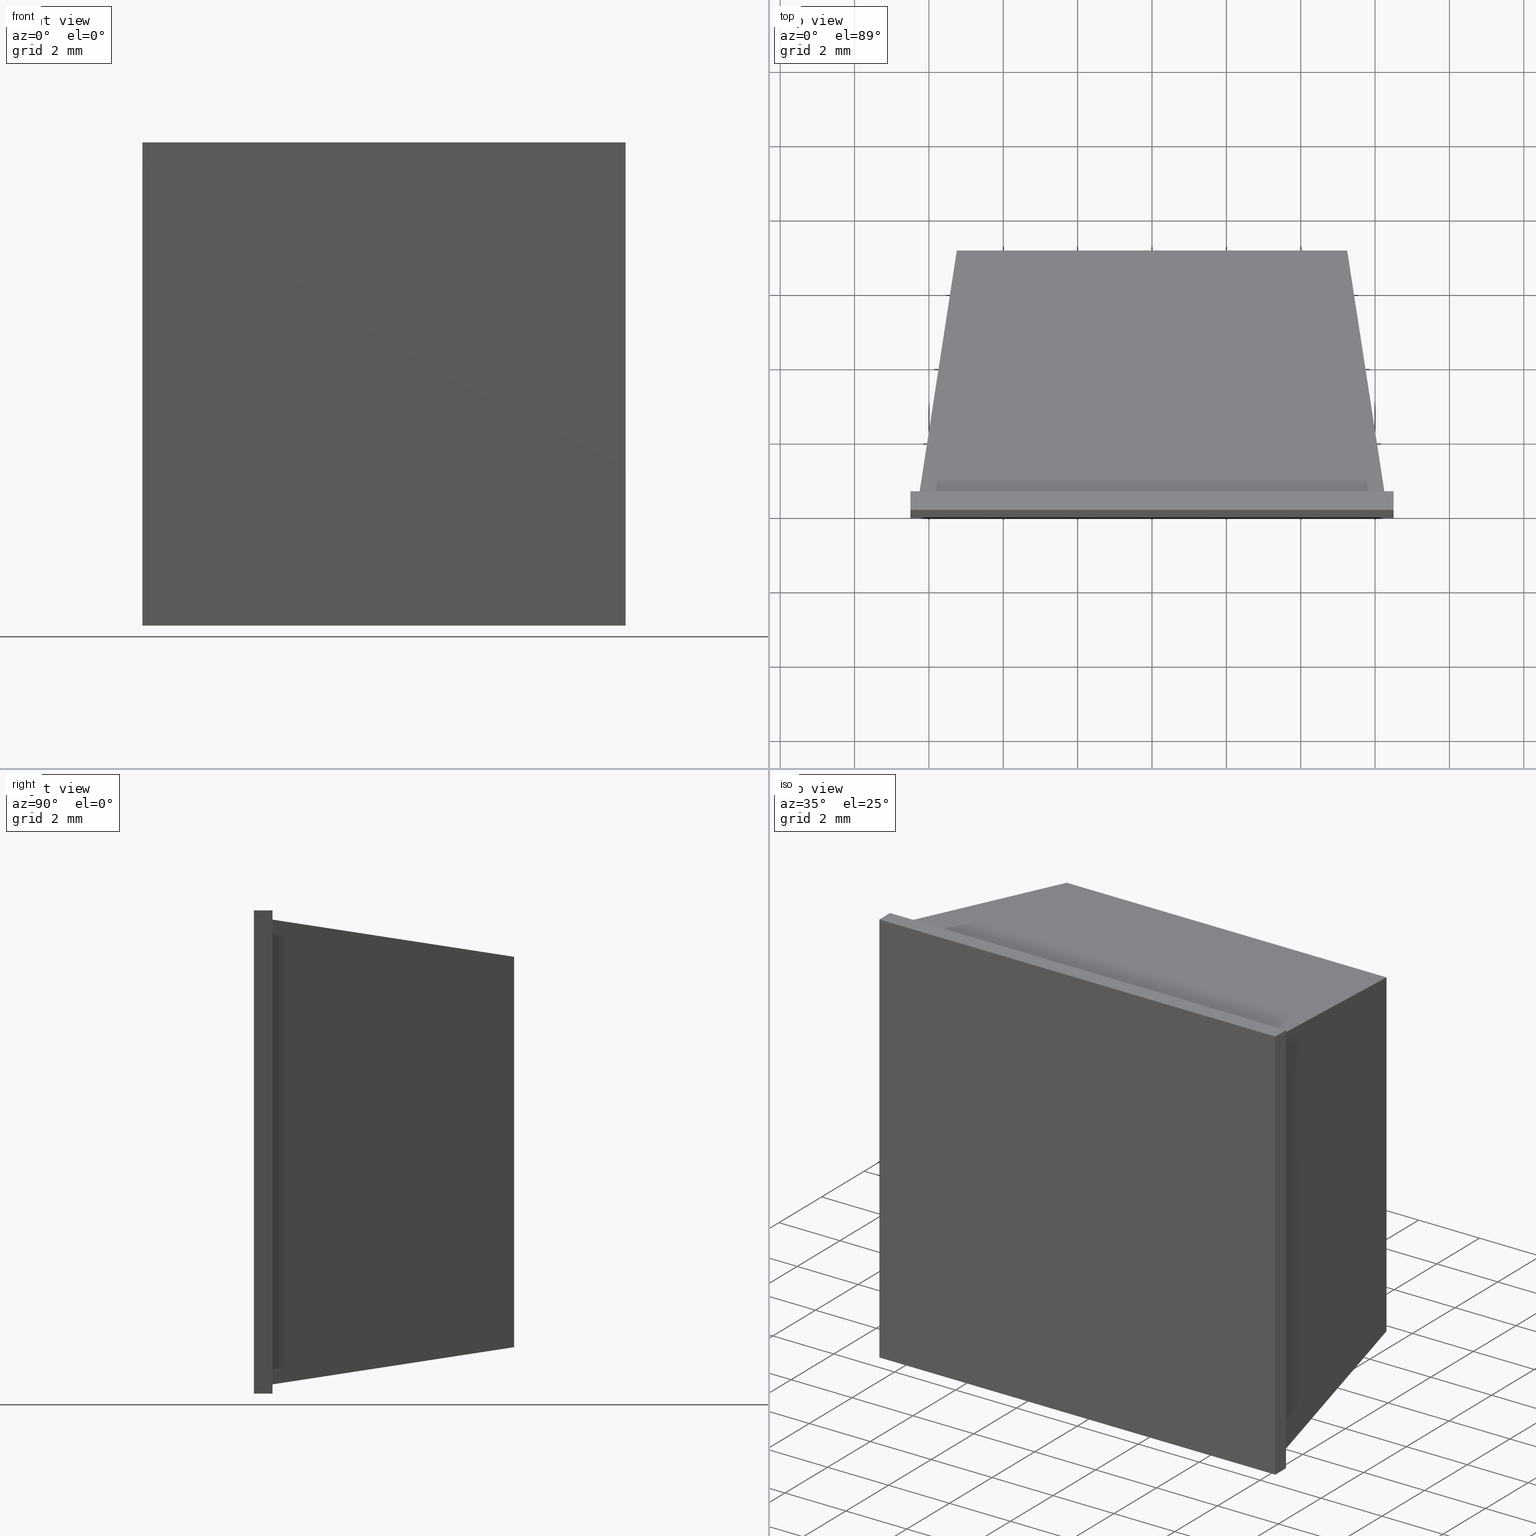
[diagram: canonical four-view strip — front | top / right | iso, engineering-drawing reading convention]
A machine part, canonical four-view strip (front | top / right | iso — engineering-drawing reading convention). The complete STEP part file that produces these views, byte-faithful:
ISO-10303-21;
HEADER;
/* Generated by software containing ST-Developer
 * from STEP Tools, Inc. (www.steptools.com) 
 */

FILE_DESCRIPTION(
/* description */ (''),
/* implementation_level */ '2;1');

FILE_NAME(
/* name */ '\\\\SYNOLOGYNAS\\web\\db2\\PR2-13-13\\\X2\B3C4BA74\X0\\\PR
2-13-13.stp',
/* time_stamp */ '2024-10-10T11:29:16+09:00',
/* author */ ('user'),
/* organization */ (''),
/* preprocessor_version */ 'ST-DEVELOPER v15.6',
/* originating_system */ 'Autodesk Inventor 2015',
/* authorisation */ '');

FILE_SCHEMA (('AUTOMOTIVE_DESIGN { 1 0 10303 214 3 1 1 }'));
ENDSEC;

DATA;
#10=MECHANICAL_DESIGN_GEOMETRIC_PRESENTATION_REPRESENTATION('',(#13),#313);
#11=SHAPE_REPRESENTATION_RELATIONSHIP('SRR','None',#322,#12);
#12=ADVANCED_BREP_SHAPE_REPRESENTATION($,(#14),#312);
#13=STYLED_ITEM('',(#331),#14);
#14=MANIFOLD_SOLID_BREP('\X2\C194B9ACB4DC\X0\1',#197);
#15=FACE_BOUND('',#37,.T.);
#16=FACE_OUTER_BOUND('',#27,.T.);
#17=FACE_OUTER_BOUND('',#28,.T.);
#18=FACE_OUTER_BOUND('',#29,.T.);
#19=FACE_OUTER_BOUND('',#30,.T.);
#20=FACE_OUTER_BOUND('',#31,.T.);
#21=FACE_OUTER_BOUND('',#32,.T.);
#22=FACE_OUTER_BOUND('',#33,.T.);
#23=FACE_OUTER_BOUND('',#34,.T.);
#24=FACE_OUTER_BOUND('',#35,.T.);
#25=FACE_OUTER_BOUND('',#36,.T.);
#26=FACE_OUTER_BOUND('',#38,.T.);
#27=EDGE_LOOP('',(#127,#128,#129,#130));
#28=EDGE_LOOP('',(#131,#132,#133,#134));
#29=EDGE_LOOP('',(#135,#136,#137,#138));
#30=EDGE_LOOP('',(#139,#140,#141,#142));
#31=EDGE_LOOP('',(#143,#144,#145,#146));
#32=EDGE_LOOP('',(#147,#148,#149,#150));
#33=EDGE_LOOP('',(#151,#152,#153,#154));
#34=EDGE_LOOP('',(#155,#156,#157,#158));
#35=EDGE_LOOP('',(#159,#160,#161,#162));
#36=EDGE_LOOP('',(#163,#164,#165,#166));
#37=EDGE_LOOP('',(#167,#168,#169,#170));
#38=EDGE_LOOP('',(#171,#172,#173,#174));
#39=LINE('',#262,#63);
#40=LINE('',#264,#64);
#41=LINE('',#266,#65);
#42=LINE('',#267,#66);
#43=LINE('',#270,#67);
#44=LINE('',#272,#68);
#45=LINE('',#273,#69);
#46=LINE('',#276,#70);
#47=LINE('',#277,#71);
#48=LINE('',#280,#72);
#49=LINE('',#281,#73);
#50=LINE('',#283,#74);
#51=LINE('',#287,#75);
#52=LINE('',#289,#76);
#53=LINE('',#291,#77);
#54=LINE('',#292,#78);
#55=LINE('',#295,#79);
#56=LINE('',#297,#80);
#57=LINE('',#298,#81);
#58=LINE('',#301,#82);
#59=LINE('',#303,#83);
#60=LINE('',#304,#84);
#61=LINE('',#306,#85);
#62=LINE('',#307,#86);
#63=VECTOR('',#214,10.5);
#64=VECTOR('',#215,10.5);
#65=VECTOR('',#216,10.5);
#66=VECTOR('',#217,10.5);
#67=VECTOR('',#220,6.65206734782504);
#68=VECTOR('',#221,12.5);
#69=VECTOR('',#222,6.65206734782504);
#70=VECTOR('',#225,6.65206734782504);
#71=VECTOR('',#226,12.5);
#72=VECTOR('',#229,6.65206734782504);
#73=VECTOR('',#230,12.5);
#74=VECTOR('',#233,12.5);
#75=VECTOR('',#236,13.);
#76=VECTOR('',#237,0.5);
#77=VECTOR('',#238,13.);
#78=VECTOR('',#239,0.5);
#79=VECTOR('',#242,13.);
#80=VECTOR('',#243,13.);
#81=VECTOR('',#244,0.5);
#82=VECTOR('',#247,13.);
#83=VECTOR('',#248,13.);
#84=VECTOR('',#249,0.5);
#85=VECTOR('',#252,13.);
#86=VECTOR('',#253,13.);
#87=VERTEX_POINT('',#260);
#88=VERTEX_POINT('',#261);
#89=VERTEX_POINT('',#263);
#90=VERTEX_POINT('',#265);
#91=VERTEX_POINT('',#269);
#92=VERTEX_POINT('',#271);
#93=VERTEX_POINT('',#275);
#94=VERTEX_POINT('',#279);
#95=VERTEX_POINT('',#285);
#96=VERTEX_POINT('',#286);
#97=VERTEX_POINT('',#288);
#98=VERTEX_POINT('',#290);
#99=VERTEX_POINT('',#294);
#100=VERTEX_POINT('',#296);
#101=VERTEX_POINT('',#300);
#102=VERTEX_POINT('',#302);
#103=EDGE_CURVE('',#87,#88,#39,.T.);
#104=EDGE_CURVE('',#89,#87,#40,.T.);
#105=EDGE_CURVE('',#90,#89,#41,.T.);
#106=EDGE_CURVE('',#88,#90,#42,.T.);
#107=EDGE_CURVE('',#88,#91,#43,.T.);
#108=EDGE_CURVE('',#92,#91,#44,.T.);
#109=EDGE_CURVE('',#87,#92,#45,.T.);
#110=EDGE_CURVE('',#90,#93,#46,.T.);
#111=EDGE_CURVE('',#91,#93,#47,.T.);
#112=EDGE_CURVE('',#89,#94,#48,.T.);
#113=EDGE_CURVE('',#93,#94,#49,.T.);
#114=EDGE_CURVE('',#94,#92,#50,.T.);
#115=EDGE_CURVE('',#95,#96,#51,.T.);
#116=EDGE_CURVE('',#95,#97,#52,.T.);
#117=EDGE_CURVE('',#98,#97,#53,.T.);
#118=EDGE_CURVE('',#96,#98,#54,.T.);
#119=EDGE_CURVE('',#96,#99,#55,.T.);
#120=EDGE_CURVE('',#100,#98,#56,.T.);
#121=EDGE_CURVE('',#99,#100,#57,.T.);
#122=EDGE_CURVE('',#99,#101,#58,.T.);
#123=EDGE_CURVE('',#102,#100,#59,.T.);
#124=EDGE_CURVE('',#101,#102,#60,.T.);
#125=EDGE_CURVE('',#101,#95,#61,.T.);
#126=EDGE_CURVE('',#97,#102,#62,.T.);
#127=ORIENTED_EDGE('',*,*,#103,.F.);
#128=ORIENTED_EDGE('',*,*,#104,.F.);
#129=ORIENTED_EDGE('',*,*,#105,.F.);
#130=ORIENTED_EDGE('',*,*,#106,.F.);
#131=ORIENTED_EDGE('',*,*,#103,.T.);
#132=ORIENTED_EDGE('',*,*,#107,.T.);
#133=ORIENTED_EDGE('',*,*,#108,.F.);
#134=ORIENTED_EDGE('',*,*,#109,.F.);
#135=ORIENTED_EDGE('',*,*,#106,.T.);
#136=ORIENTED_EDGE('',*,*,#110,.T.);
#137=ORIENTED_EDGE('',*,*,#111,.F.);
#138=ORIENTED_EDGE('',*,*,#107,.F.);
#139=ORIENTED_EDGE('',*,*,#105,.T.);
#140=ORIENTED_EDGE('',*,*,#112,.T.);
#141=ORIENTED_EDGE('',*,*,#113,.F.);
#142=ORIENTED_EDGE('',*,*,#110,.F.);
#143=ORIENTED_EDGE('',*,*,#104,.T.);
#144=ORIENTED_EDGE('',*,*,#109,.T.);
#145=ORIENTED_EDGE('',*,*,#114,.F.);
#146=ORIENTED_EDGE('',*,*,#112,.F.);
#147=ORIENTED_EDGE('',*,*,#115,.F.);
#148=ORIENTED_EDGE('',*,*,#116,.T.);
#149=ORIENTED_EDGE('',*,*,#117,.F.);
#150=ORIENTED_EDGE('',*,*,#118,.F.);
#151=ORIENTED_EDGE('',*,*,#119,.F.);
#152=ORIENTED_EDGE('',*,*,#118,.T.);
#153=ORIENTED_EDGE('',*,*,#120,.F.);
#154=ORIENTED_EDGE('',*,*,#121,.F.);
#155=ORIENTED_EDGE('',*,*,#122,.F.);
#156=ORIENTED_EDGE('',*,*,#121,.T.);
#157=ORIENTED_EDGE('',*,*,#123,.F.);
#158=ORIENTED_EDGE('',*,*,#124,.F.);
#159=ORIENTED_EDGE('',*,*,#125,.F.);
#160=ORIENTED_EDGE('',*,*,#124,.T.);
#161=ORIENTED_EDGE('',*,*,#126,.F.);
#162=ORIENTED_EDGE('',*,*,#116,.F.);
#163=ORIENTED_EDGE('',*,*,#126,.T.);
#164=ORIENTED_EDGE('',*,*,#123,.T.);
#165=ORIENTED_EDGE('',*,*,#120,.T.);
#166=ORIENTED_EDGE('',*,*,#117,.T.);
#167=ORIENTED_EDGE('',*,*,#108,.T.);
#168=ORIENTED_EDGE('',*,*,#111,.T.);
#169=ORIENTED_EDGE('',*,*,#113,.T.);
#170=ORIENTED_EDGE('',*,*,#114,.T.);
#171=ORIENTED_EDGE('',*,*,#125,.T.);
#172=ORIENTED_EDGE('',*,*,#115,.T.);
#173=ORIENTED_EDGE('',*,*,#119,.T.);
#174=ORIENTED_EDGE('',*,*,#122,.T.);
#175=PLANE('',#199);
#176=PLANE('',#200);
#177=PLANE('',#201);
#178=PLANE('',#202);
#179=PLANE('',#203);
#180=PLANE('',#204);
#181=PLANE('',#205);
#182=PLANE('',#206);
#183=PLANE('',#207);
#184=PLANE('',#208);
#185=PLANE('',#209);
#186=ADVANCED_FACE('',(#16),#175,.T.);
#187=ADVANCED_FACE('',(#17),#176,.T.);
#188=ADVANCED_FACE('',(#18),#177,.T.);
#189=ADVANCED_FACE('',(#19),#178,.T.);
#190=ADVANCED_FACE('',(#20),#179,.T.);
#191=ADVANCED_FACE('',(#21),#180,.T.);
#192=ADVANCED_FACE('',(#22),#181,.T.);
#193=ADVANCED_FACE('',(#23),#182,.T.);
#194=ADVANCED_FACE('',(#24),#183,.T.);
#195=ADVANCED_FACE('',(#25,#15),#184,.T.);
#196=ADVANCED_FACE('',(#26),#185,.F.);
#197=CLOSED_SHELL('',(#186,#187,#188,#189,#190,#191,#192,#193,#194,#195,
#196));
#198=AXIS2_PLACEMENT_3D('placement',#258,#210,#211);
#199=AXIS2_PLACEMENT_3D('',#259,#212,#213);
#200=AXIS2_PLACEMENT_3D('',#268,#218,#219);
#201=AXIS2_PLACEMENT_3D('',#274,#223,#224);
#202=AXIS2_PLACEMENT_3D('',#278,#227,#228);
#203=AXIS2_PLACEMENT_3D('',#282,#231,#232);
#204=AXIS2_PLACEMENT_3D('',#284,#234,#235);
#205=AXIS2_PLACEMENT_3D('',#293,#240,#241);
#206=AXIS2_PLACEMENT_3D('',#299,#245,#246);
#207=AXIS2_PLACEMENT_3D('',#305,#250,#251);
#208=AXIS2_PLACEMENT_3D('',#308,#254,#255);
#209=AXIS2_PLACEMENT_3D('',#309,#256,#257);
#210=DIRECTION('axis',(0.,0.,1.));
#211=DIRECTION('refdir',(1.,0.,0.));
#212=DIRECTION('center_axis',(5.33970220476537E-32,1.,-4.6722394291697E-32));
#213=DIRECTION('ref_axis',(0.,0.,1.));
#214=DIRECTION('',(1.,0.,0.));
#215=DIRECTION('',(0.,0.,-1.));
#216=DIRECTION('',(-1.,0.,0.));
#217=DIRECTION('',(0.,0.,1.));
#218=DIRECTION('center_axis',(-1.61615729536989E-17,0.152057184253941,-0.988371697650617));
#219=DIRECTION('ref_axis',(-1.,0.,0.));
#220=DIRECTION('',(0.150329205600566,-0.977139836403678,-0.150329205600566));
#221=DIRECTION('',(1.,0.,-1.63517156471754E-17));
#222=DIRECTION('',(-0.150329205600566,-0.977139836403678,-0.150329205600565));
#223=DIRECTION('center_axis',(0.988371697650617,0.152057184253941,-1.61615729536989E-17));
#224=DIRECTION('ref_axis',(0.,0.,-1.));
#225=DIRECTION('',(0.150329205600566,-0.977139836403678,0.150329205600566));
#226=DIRECTION('',(1.63517156471754E-17,0.,1.));
#227=DIRECTION('center_axis',(1.61615729536989E-17,0.152057184253941,0.988371697650617));
#228=DIRECTION('ref_axis',(1.,0.,0.));
#229=DIRECTION('',(-0.150329205600566,-0.977139836403678,0.150329205600566));
#230=DIRECTION('',(-1.,0.,1.63517156471754E-17));
#231=DIRECTION('center_axis',(-0.988371697650617,0.152057184253941,1.61615729536989E-17));
#232=DIRECTION('ref_axis',(0.,0.,1.));
#233=DIRECTION('',(-1.63517156471754E-17,0.,-1.));
#234=DIRECTION('center_axis',(-1.,0.,0.));
#235=DIRECTION('ref_axis',(0.,0.,1.));
#236=DIRECTION('',(0.,0.,-1.));
#237=DIRECTION('',(0.,1.,0.));
#238=DIRECTION('',(0.,0.,1.));
#239=DIRECTION('',(0.,1.,0.));
#240=DIRECTION('center_axis',(0.,0.,-1.));
#241=DIRECTION('ref_axis',(-1.,0.,0.));
#242=DIRECTION('',(1.,0.,0.));
#243=DIRECTION('',(-1.,0.,0.));
#244=DIRECTION('',(0.,1.,0.));
#245=DIRECTION('center_axis',(1.,0.,0.));
#246=DIRECTION('ref_axis',(0.,0.,-1.));
#247=DIRECTION('',(0.,0.,1.));
#248=DIRECTION('',(0.,0.,-1.));
#249=DIRECTION('',(0.,1.,0.));
#250=DIRECTION('center_axis',(0.,0.,1.));
#251=DIRECTION('ref_axis',(1.,0.,0.));
#252=DIRECTION('',(-1.,0.,0.));
#253=DIRECTION('',(1.,0.,0.));
#254=DIRECTION('center_axis',(0.,1.,0.));
#255=DIRECTION('ref_axis',(0.,0.,1.));
#256=DIRECTION('center_axis',(0.,1.,0.));
#257=DIRECTION('ref_axis',(0.,0.,1.));
#258=CARTESIAN_POINT('',(0.,0.,0.));
#259=CARTESIAN_POINT('Origin',(0.,7.,7.56970244062607E-17));
#260=CARTESIAN_POINT('',(-5.25,7.,-5.25));
#261=CARTESIAN_POINT('',(5.25,7.,-5.25));
#262=CARTESIAN_POINT('',(-5.25,7.,-5.25));
#263=CARTESIAN_POINT('',(-5.25,7.,5.25));
#264=CARTESIAN_POINT('',(-5.25,7.,5.25));
#265=CARTESIAN_POINT('',(5.25,7.,5.25));
#266=CARTESIAN_POINT('',(5.25,7.,5.25));
#267=CARTESIAN_POINT('',(5.25,7.,-5.25));
#268=CARTESIAN_POINT('Origin',(-5.25,7.,-5.25));
#269=CARTESIAN_POINT('',(6.25,0.5,-6.25));
#270=CARTESIAN_POINT('',(5.25,7.,-5.25));
#271=CARTESIAN_POINT('',(-6.25,0.5,-6.25));
#272=CARTESIAN_POINT('',(-2.625,0.5,-6.25));
#273=CARTESIAN_POINT('',(-5.25,7.,-5.25));
#274=CARTESIAN_POINT('Origin',(5.25,7.,-5.25));
#275=CARTESIAN_POINT('',(6.25,0.5,6.25));
#276=CARTESIAN_POINT('',(5.25,7.,5.25));
#277=CARTESIAN_POINT('',(6.25,0.5,-2.625));
#278=CARTESIAN_POINT('Origin',(5.25,7.,5.25));
#279=CARTESIAN_POINT('',(-6.25,0.5,6.25));
#280=CARTESIAN_POINT('',(-5.25,7.,5.25));
#281=CARTESIAN_POINT('',(2.625,0.5,6.25));
#282=CARTESIAN_POINT('Origin',(-5.25,7.,5.25));
#283=CARTESIAN_POINT('',(-6.25,0.5,2.625));
#284=CARTESIAN_POINT('Origin',(-6.5,0.,-6.5));
#285=CARTESIAN_POINT('',(-6.5,0.,6.5));
#286=CARTESIAN_POINT('',(-6.5,0.,-6.5));
#287=CARTESIAN_POINT('',(-6.5,0.,6.5));
#288=CARTESIAN_POINT('',(-6.5,0.5,6.5));
#289=CARTESIAN_POINT('',(-6.5,0.,6.5));
#290=CARTESIAN_POINT('',(-6.5,0.5,-6.5));
#291=CARTESIAN_POINT('',(-6.5,0.5,6.5));
#292=CARTESIAN_POINT('',(-6.5,0.,-6.5));
#293=CARTESIAN_POINT('Origin',(6.5,0.,-6.5));
#294=CARTESIAN_POINT('',(6.5,0.,-6.5));
#295=CARTESIAN_POINT('',(-6.5,0.,-6.5));
#296=CARTESIAN_POINT('',(6.5,0.5,-6.5));
#297=CARTESIAN_POINT('',(-6.5,0.5,-6.5));
#298=CARTESIAN_POINT('',(6.5,0.,-6.5));
#299=CARTESIAN_POINT('Origin',(6.5,0.,6.5));
#300=CARTESIAN_POINT('',(6.5,0.,6.5));
#301=CARTESIAN_POINT('',(6.5,0.,-6.5));
#302=CARTESIAN_POINT('',(6.5,0.5,6.5));
#303=CARTESIAN_POINT('',(6.5,0.5,-6.5));
#304=CARTESIAN_POINT('',(6.5,0.,6.5));
#305=CARTESIAN_POINT('Origin',(-6.5,0.,6.5));
#306=CARTESIAN_POINT('',(6.5,0.,6.5));
#307=CARTESIAN_POINT('',(6.5,0.5,6.5));
#308=CARTESIAN_POINT('Origin',(0.,0.5,0.));
#309=CARTESIAN_POINT('Origin',(0.,0.,0.));
#310=UNCERTAINTY_MEASURE_WITH_UNIT(LENGTH_MEASURE(0.01),#314,
'DISTANCE_ACCURACY_VALUE',
'Maximum model space distance between geometric entities at asserted c
onnectivities');
#311=UNCERTAINTY_MEASURE_WITH_UNIT(LENGTH_MEASURE(1.E-6),#314,
'DISTANCE_ACCURACY_VALUE',
'Maximum model space distance between geometric entities at asserted c
onnectivities');
#312=(
GEOMETRIC_REPRESENTATION_CONTEXT(3)
GLOBAL_UNCERTAINTY_ASSIGNED_CONTEXT((#310))
GLOBAL_UNIT_ASSIGNED_CONTEXT((#314,#317,#315))
REPRESENTATION_CONTEXT('','3D')
);
#313=(
GEOMETRIC_REPRESENTATION_CONTEXT(3)
GLOBAL_UNCERTAINTY_ASSIGNED_CONTEXT((#311))
GLOBAL_UNIT_ASSIGNED_CONTEXT((#314,#317,#315))
REPRESENTATION_CONTEXT('','3D')
);
#314=(
LENGTH_UNIT()
NAMED_UNIT(*)
SI_UNIT(.MILLI.,.METRE.)
);
#315=(
NAMED_UNIT(*)
SI_UNIT($,.STERADIAN.)
SOLID_ANGLE_UNIT()
);
#316=DIMENSIONAL_EXPONENTS(0.,0.,0.,0.,0.,0.,0.);
#317=(
CONVERSION_BASED_UNIT('degree',#319)
NAMED_UNIT(#316)
PLANE_ANGLE_UNIT()
);
#318=(
NAMED_UNIT(*)
PLANE_ANGLE_UNIT()
SI_UNIT($,.RADIAN.)
);
#319=PLANE_ANGLE_MEASURE_WITH_UNIT(PLANE_ANGLE_MEASURE(0.01745329252),#318);
#320=SHAPE_DEFINITION_REPRESENTATION(#321,#322);
#321=PRODUCT_DEFINITION_SHAPE('',$,#324);
#322=SHAPE_REPRESENTATION('',(#198),#312);
#323=PRODUCT_DEFINITION_CONTEXT('part definition',#328,'design');
#324=PRODUCT_DEFINITION('PR2-13-13','PR2-13-13',#325,#323);
#325=PRODUCT_DEFINITION_FORMATION('',$,#330);
#326=PRODUCT_RELATED_PRODUCT_CATEGORY('PR2-13-13','PR2-13-13',(#330));
#327=APPLICATION_PROTOCOL_DEFINITION('international standard',
'automotive_design',2009,#328);
#328=APPLICATION_CONTEXT(
'Core Data for Automotive Mechanical Design Process');
#329=PRODUCT_CONTEXT('part definition',#328,'mechanical');
#330=PRODUCT('PR2-13-13','PR2-13-13',$,(#329));
#331=PRESENTATION_STYLE_ASSIGNMENT((#332));
#332=SURFACE_STYLE_USAGE(.BOTH.,#333);
#333=SURFACE_SIDE_STYLE($,(#334));
#334=SURFACE_STYLE_FILL_AREA(#335);
#335=FILL_AREA_STYLE($,(#336));
#336=FILL_AREA_STYLE_COLOUR($,#337);
#337=COLOUR_RGB('',1.,1.,1.);
ENDSEC;
END-ISO-10303-21;
